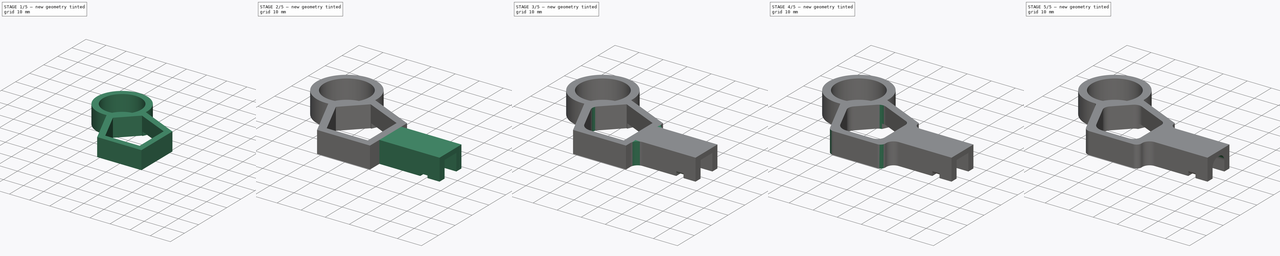
[diagram: build sequence overview — one tinted view per stage of 5, left to right]
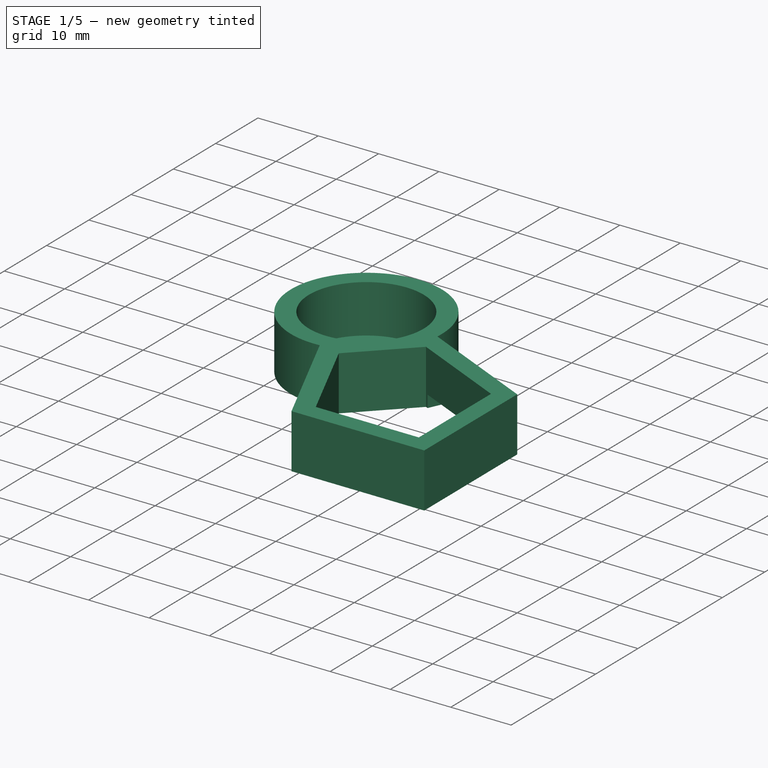
[diagram: stage 1 of 5 — iso view after this stage's code; geometry added in this stage tinted green]
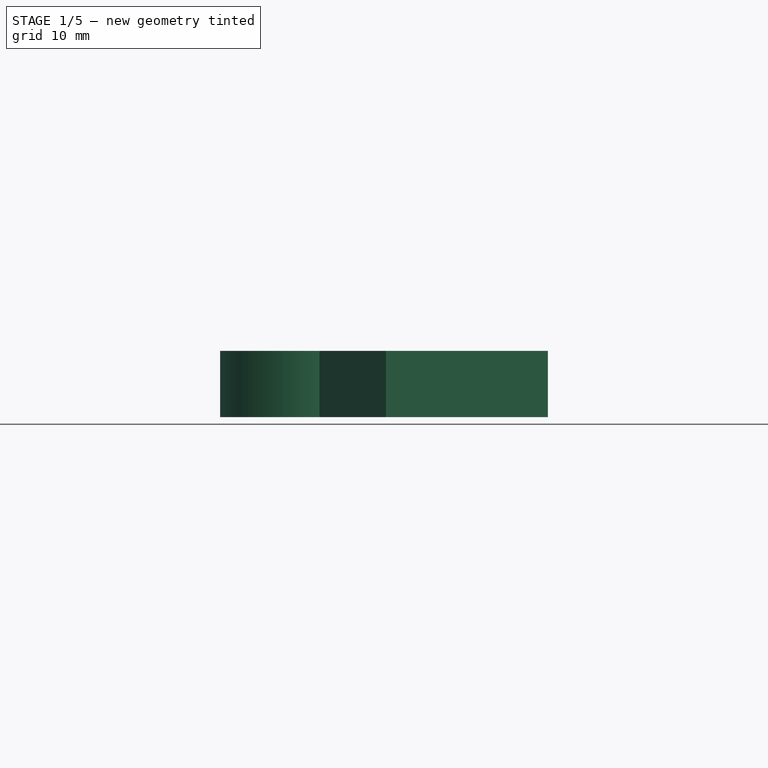
[diagram: stage 1 of 5 — front view after this stage's code; geometry added in this stage tinted green]
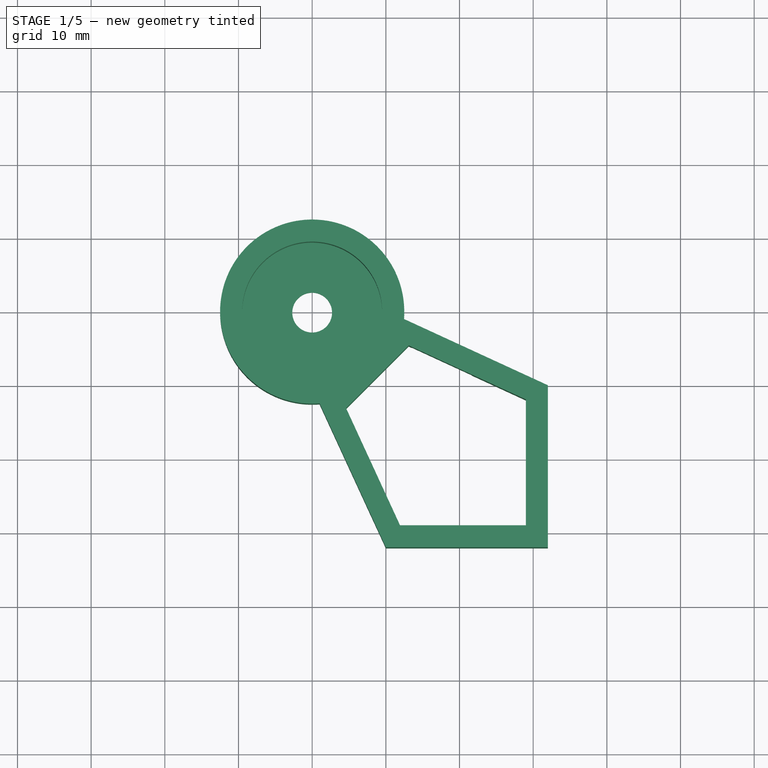
[diagram: stage 1 of 5 — top view after this stage's code; geometry added in this stage tinted green]
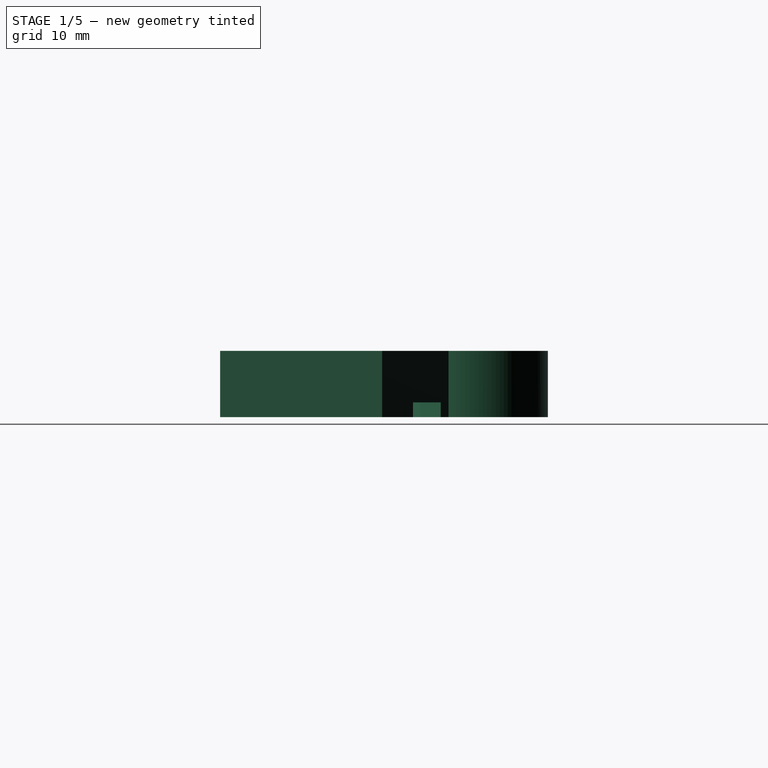
[diagram: stage 1 of 5 — right view after this stage's code; geometry added in this stage tinted green]
FCSTD DOCUMENT  (FreeCAD 0.18R4 (GitTag))
Label: patte-cable
License: All rights reserved
LicenseURL: http://en.wikipedia.org/wiki/All_rights_reserved
objects: PartDesign::Fillet×19, Sketcher::SketchObject×11, PartDesign::Pocket×7, PartDesign::Pad×3, PartDesign::Chamfer×1, PartDesign::Body×1
note: 52 computed .brp shape members not serialized (recipe doc carries the construction recipe); baked Part::Feature solids carry a one-line shape summary decoded from their .brp

FEATURE [Sketcher::SketchObject] Sketch
  MapMode = 5
  Support = -> [XY_Plane]
  sketch-geometry (1):
    g0: Circle CenterX=0 CenterY=0 CenterZ=0 NormalX=0 NormalY=0 NormalZ=1 AngleXU=0 Radius=12.5
  constraints (2):
    c: Coincident(g0,g-1)
    c: Radius(g0) = 12.5
FEATURE [PartDesign::Pad] Pad  label="rond"
  Length = 9
  Length2 = 100
  Profile = -> Sketch
  Type = 0
FEATURE [Sketcher::SketchObject] Sketch001
  MapMode = 5
  Placement = pos=(0,0,9) rot=(0,0,1;0rad)
  Support = -> [Pad]
  sketch-geometry (1):
    g0: Circle CenterX=0 CenterY=0 CenterZ=0 NormalX=0 NormalY=0 NormalZ=1 AngleXU=0 Radius=9.5
  constraints (2):
    c: Coincident(g-1,g0)
    c: Radius(g0) = 9.5
FEATURE [PartDesign::Pocket] Pocket  label="evidement rond"
  BaseFeature = -> Pad
  Length = 8
  Length2 = 100
  Profile = -> Sketch001
  Type = 0
FEATURE [Sketcher::SketchObject] Sketch002
  MapMode = 5
  Placement = pos=(0,0,1) rot=(0,0,1;0rad)
  Support = -> [Pocket]
  sketch-geometry (1):
    g0: Circle CenterX=0 CenterY=0 CenterZ=0 NormalX=0 NormalY=0 NormalZ=1 AngleXU=0 Radius=2.7
  constraints (2):
    c: Coincident(g0,g-1)
    c: Radius(g0) = 2.7
FEATURE [PartDesign::Pocket] Pocket001  label="trou central"
  BaseFeature = -> Pocket
  Length = 1
  Length2 = 100
  Profile = -> Sketch002
  Type = 0
FEATURE [Sketcher::SketchObject] Sketch003
  ExternalGeometry = -> [Pocket001]
  MapMode = 5
  Placement = pos=(0,0,0) rot=(1,0,0;3.14159rad)
  Support = -> [Pocket001]
  sketch-geometry (5):
    g0: LineSegment StartX=1 StartY=12.4599 StartZ=0 EndX=10 EndY=32 EndZ=0
    g1: LineSegment StartX=10 StartY=32 StartZ=0 EndX=32 EndY=32 EndZ=0
    g2: LineSegment StartX=32 StartY=32 StartZ=0 EndX=32 EndY=10 EndZ=0
    g3: LineSegment StartX=32 StartY=10 StartZ=0 EndX=12.4599 EndY=1 EndZ=0
    g4: LineSegment StartX=12.4599 StartY=1 StartZ=0 EndX=1 EndY=12.4599 EndZ=0
  constraints (15):
    c: Coincident(g0,g1)
    c: Coincident(g1,g2)
    c: Coincident(g2,g3)
    c: Coincident(g3,g4)
    c: Coincident(g4,g0)
    c: Horizontal(g1)
    c: Vertical(g2)
    c: PointOnObject(g0,g-3)
    c: PointOnObject(g3,g-3)
    c: DistanceY(g2,g2) = 22
    c: DistanceX(g1,g1) = 22
    c: DistanceX(g-1,g2) = 32
    c: DistanceY(g-1,g0) = 32
    c: DistanceY(g-1,g3) = 1
    c: DistanceX(g-1,g0) = 1
FEATURE [PartDesign::Pad] Pad001  label="pentagone"
  BaseFeature = -> Pocket001
  Length = 9
  Length2 = 100
  Profile = -> Sketch003
  Reversed = true
  Type = 0
FEATURE [Sketcher::SketchObject] Sketch004
  ExternalGeometry = -> [Pad001]
  MapMode = 5
  Placement = pos=(1.80071,3.90956,0) rot=(0.153188,0.698761,0.698761;2.83758rad)
  Support = -> [Pad001]
  sketch-geometry (4):
    g0: LineSegment StartX=-23.2487 StartY=-3.08644 StartZ=0 EndX=-14.2487 EndY=-3.08644 EndZ=0
    g1: LineSegment StartX=-14.2487 StartY=-3.08644 StartZ=0 EndX=-14.2487 EndY=2 EndZ=0
    g2: LineSegment StartX=-14.2487 StartY=2 StartZ=0 EndX=-23.2487 EndY=2 EndZ=0
    g3: LineSegment StartX=-23.2487 StartY=2 StartZ=0 EndX=-23.2487 EndY=-3.08644 EndZ=0
  constraints (11):
    c: Coincident(g0,g1)
    c: Coincident(g1,g2)
    c: Coincident(g2,g3)
    c: Coincident(g3,g0)
    c: Horizontal(g0)
    c: Horizontal(g2)
    c: Vertical(g1)
    c: Vertical(g3)
    c: DistanceX(g-3,g2) = 10
    c: DistanceX(g-3,g1) = 19
    c: DistanceY(g-3,g2) = 2
FEATURE [PartDesign::Pocket] Pocket002  label="passe cable termo"
  BaseFeature = -> Pad001
  Length = 5
  Length2 = 100
  Profile = -> Sketch004
  Type = 0
FEATURE [Sketcher::SketchObject] Sketch005
  ExternalGeometry = -> [Pocket002]
  MapMode = 5
  Placement = pos=(0,0,0) rot=(1,0,0;3.14159rad)
  Support = -> [Pocket002]
  sketch-geometry (5):
    g0: LineSegment StartX=4.59926 StartY=13.1033 StartZ=0 EndX=11.9211 EndY=29 EndZ=0
    g1: LineSegment StartX=11.9211 StartY=29 StartZ=0 EndX=29 EndY=29 EndZ=0
    g2: LineSegment StartX=29 StartY=29 StartZ=0 EndX=29 EndY=11.9211 EndZ=0
    g3: LineSegment StartX=29 StartY=11.9211 StartZ=0 EndX=13.1033 EndY=4.59926 EndZ=0
    g4: LineSegment StartX=13.1033 StartY=4.59926 StartZ=0 EndX=4.59926 EndY=13.1033 EndZ=0
  constraints (15):
    c: Coincident(g0,g1)
    c: Coincident(g1,g2)
    c: Coincident(g2,g3)
    c: Coincident(g3,g4)
    c: Coincident(g4,g0)
    c: Parallel(g1,g-4)
    c: Parallel(g-5,g2)
    c: Parallel(g-7,g3)
    c: Parallel(g4,g-6)
    c: Parallel(g0,g-3)
    c: DistanceX(g1,g-5) = 3
    c: DistanceY(g1,g-5) = 3
    c: Distance(g2,g-7) = 3
    c: Distance(g3,g-6) = 3
    c: Distance(g0,g-3) = 3
FEATURE [PartDesign::Pocket] Pocket003  label="extru pentagone"
  BaseFeature = -> Pocket002
  Length = 9
  Length2 = 100
  Profile = -> Sketch005
  Type = 0
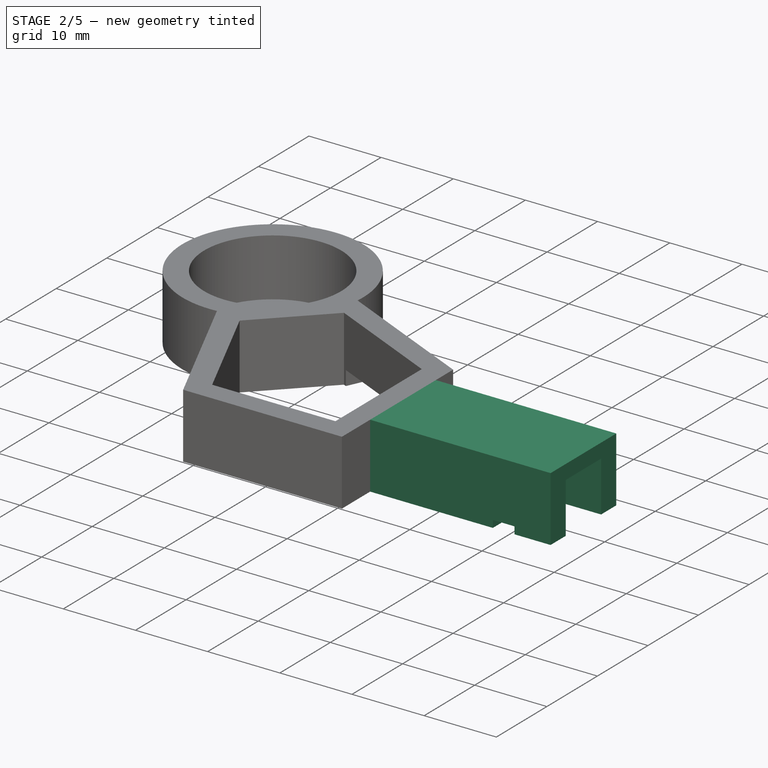
[diagram: stage 2 of 5 — iso view after this stage's code; geometry added in this stage tinted green]
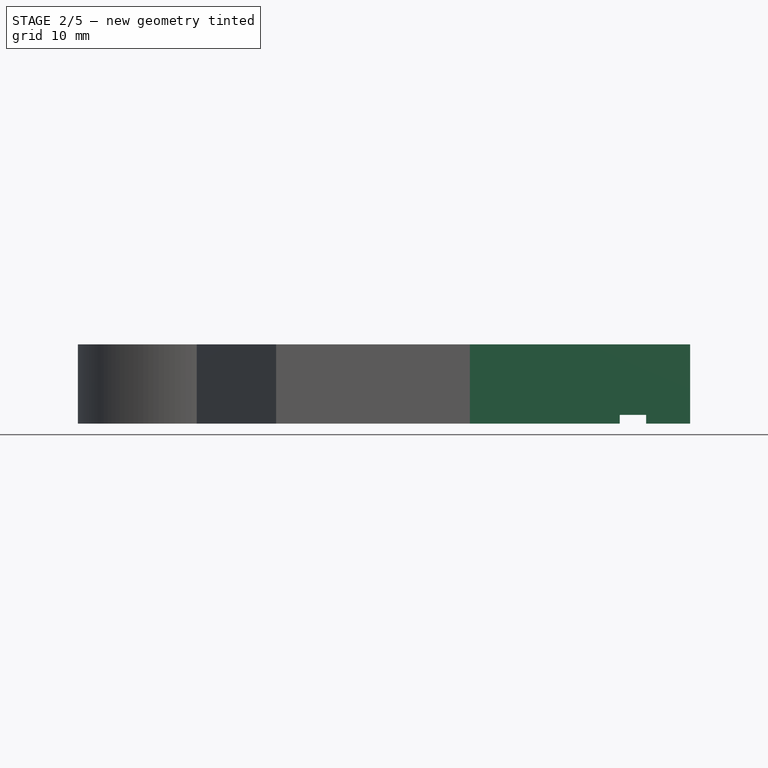
[diagram: stage 2 of 5 — front view after this stage's code; geometry added in this stage tinted green]
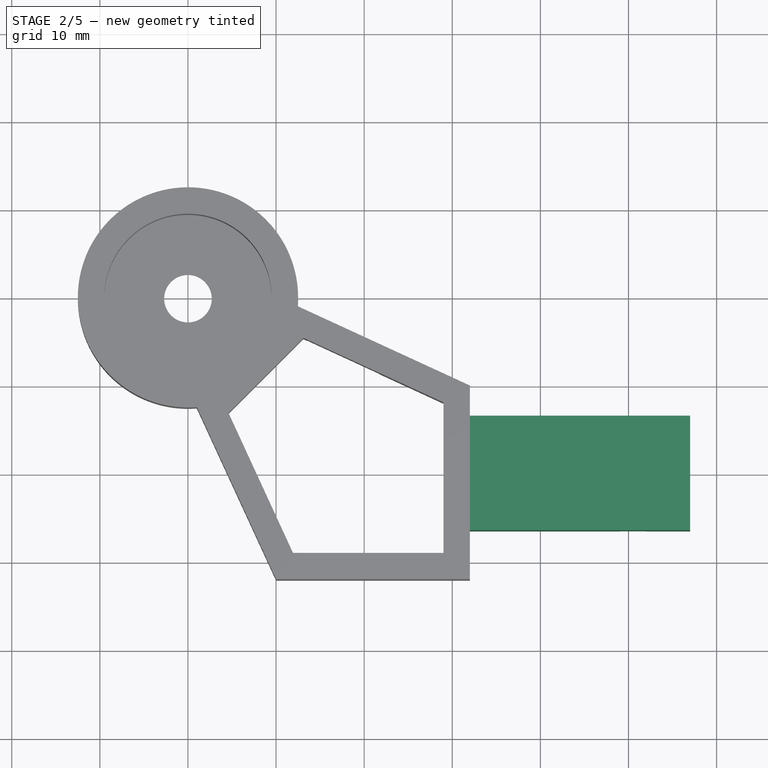
[diagram: stage 2 of 5 — top view after this stage's code; geometry added in this stage tinted green]
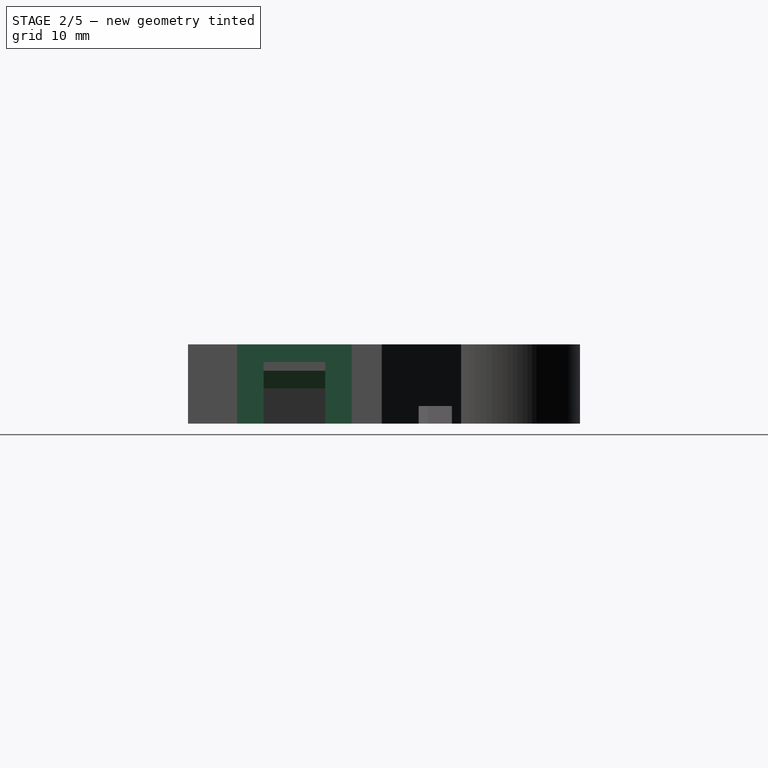
[diagram: stage 2 of 5 — right view after this stage's code; geometry added in this stage tinted green]
FEATURE [Sketcher::SketchObject] Sketch006  label="passse cable main"
  ExternalGeometry = -> [Pocket003]
  MapMode = 5
  Placement = pos=(32,0,0) rot=(0.57735,0.57735,0.57735;2.0944rad)
  Support = -> [Pocket003]
  sketch-geometry (4):
    g0: LineSegment StartX=-26 StartY=-3.75311 StartZ=0 EndX=-14 EndY=-3.75311 EndZ=0
    g1: LineSegment StartX=-14 StartY=-3.75311 StartZ=0 EndX=-14 EndY=4 EndZ=0
    g2: LineSegment StartX=-14 StartY=4 StartZ=0 EndX=-26 EndY=4 EndZ=0
    g3: LineSegment StartX=-26 StartY=4 StartZ=0 EndX=-26 EndY=-3.75311 EndZ=0
  constraints (11):
    c: Coincident(g0,g1)
    c: Coincident(g1,g2)
    c: Coincident(g2,g3)
    c: Coincident(g3,g0)
    c: Horizontal(g0)
    c: Horizontal(g2)
    c: Vertical(g1)
    c: Vertical(g3)
    c: DistanceX(g-3,g2) = 6
    c: DistanceX(g-3,g1) = 18
    c: DistanceY(g-3,g2) = 4
FEATURE [PartDesign::Pocket] Pocket004
  BaseFeature = -> Pocket003
  Length = 5
  Length2 = 100
  Profile = -> Sketch006
  Type = 0
FEATURE [Sketcher::SketchObject] Sketch007
  MapMode = 5
  Placement = pos=(32,0,0) rot=(0.57735,0.57735,0.57735;2.0944rad)
  Support = -> [Pocket004]
  sketch-geometry (8):
    g0: LineSegment StartX=-23.4195 StartY=9e-16 StartZ=0 EndX=-26.4195 EndY=9e-16 EndZ=0
    g1: LineSegment StartX=-26.4195 StartY=9e-16 StartZ=0 EndX=-26.4195 EndY=9 EndZ=0
    g2: LineSegment StartX=-26.4195 StartY=9 StartZ=0 EndX=-13.4195 EndY=9 EndZ=0
    g3: LineSegment StartX=-13.4195 StartY=9 StartZ=0 EndX=-13.4195 EndY=0 EndZ=0
    g4: LineSegment StartX=-13.4195 StartY=0 StartZ=0 EndX=-16.4195 EndY=0 EndZ=0
    g5: LineSegment StartX=-16.4195 StartY=0 StartZ=0 EndX=-16.4195 EndY=7 EndZ=0
    g6: LineSegment StartX=-16.4195 StartY=7 StartZ=0 EndX=-23.4195 EndY=7 EndZ=0
    g7: LineSegment StartX=-23.4195 StartY=7 StartZ=0 EndX=-23.4195 EndY=9e-16 EndZ=0
  constraints (23):
    c: Horizontal(g0)
    c: Coincident(g0,g1)
    c: Vertical(g1)
    c: Coincident(g1,g2)
    c: Horizontal(g2)
    c: Coincident(g2,g3)
    c: Vertical(g3)
    c: Coincident(g3,g4)
    c: Horizontal(g4)
    c: Coincident(g4,g5)
    c: Vertical(g5)
    c: Coincident(g5,g6)
    c: Horizontal(g6)
    c: Coincident(g6,g7)
    c: Coincident(g7,g0)
    c: Vertical(g7)
    c: DistanceX(g4,g4) = 3
    c: DistanceX(g0,g0) = 3
    c: DistanceX(g6,g6) = 7
    c: DistanceY(g3,g3) = 9
    c: Equal(g1,g3)
    c: DistanceY(g4,g5) = 7
    c: PointOnObject(g3,g-1)
FEATURE [PartDesign::Pad] Pad002  label="tunnel cable"
  BaseFeature = -> Pocket004
  Length = 25
  Length2 = 100
  Profile = -> Sketch007
  Type = 0
FEATURE [PartDesign::Chamfer] Chamfer
  Base = -> Pad002 [Edge80]
  BaseFeature = -> Pad002
  Size = 2
FEATURE [PartDesign::Fillet] Fillet
  Base = -> Chamfer [Edge16]
  BaseFeature = -> Chamfer
  Radius = 2.4
FEATURE [PartDesign::Fillet] Fillet001
  Base = -> Fillet [Edge35]
  BaseFeature = -> Fillet
  Radius = 2.4
FEATURE [Sketcher::SketchObject] Sketch008
  MapMode = 5
  Placement = pos=(0,0,9e-16) rot=(1,0,0;3.14159rad)
  Support = -> [Fillet001]
FEATURE [Sketcher::SketchObject] Sketch009
  ExternalGeometry = -> [Fillet001]
  MapMode = 5
  Placement = pos=(0,-13.4195,0) rot=(0,0.707107,0.707107;3.14159rad)
  Support = -> [Fillet001]
  sketch-geometry (4):
    g0: LineSegment StartX=-52 StartY=0 StartZ=0 EndX=-49 EndY=0 EndZ=0
    g1: LineSegment StartX=-49 StartY=0 StartZ=0 EndX=-49 EndY=1 EndZ=0
    g2: LineSegment StartX=-49 StartY=1 StartZ=0 EndX=-52 EndY=1 EndZ=0
    g3: LineSegment StartX=-52 StartY=1 StartZ=0 EndX=-52 EndY=0 EndZ=0
  constraints (12):
    c: Coincident(g0,g1)
    c: Coincident(g1,g2)
    c: Coincident(g2,g3)
    c: Coincident(g3,g0)
    c: Horizontal(g0)
    c: Horizontal(g2)
    c: Vertical(g1)
    c: Vertical(g3)
    c: DistanceY(g1,g1) = 1
    c: DistanceX(g2,g2) = 3
    c: PointOnObject(g0,g-3)
    c: DistanceX(g-3,g0) = 5
FEATURE [PartDesign::Pocket] Pocket005
  BaseFeature = -> Fillet001
  Length = 13
  Length2 = 100
  Profile = -> Sketch009
  Type = 0
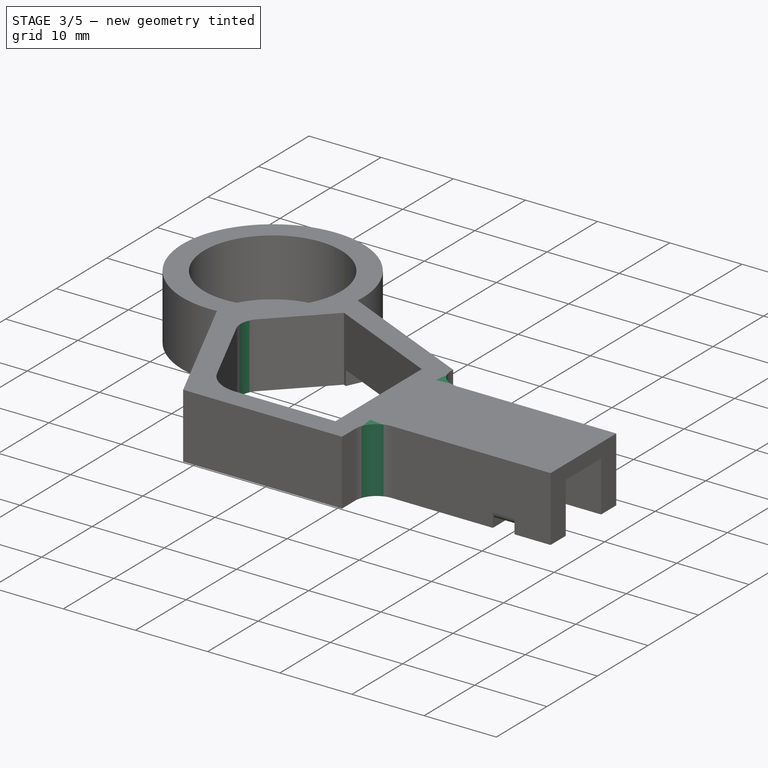
[diagram: stage 3 of 5 — iso view after this stage's code; geometry added in this stage tinted green]
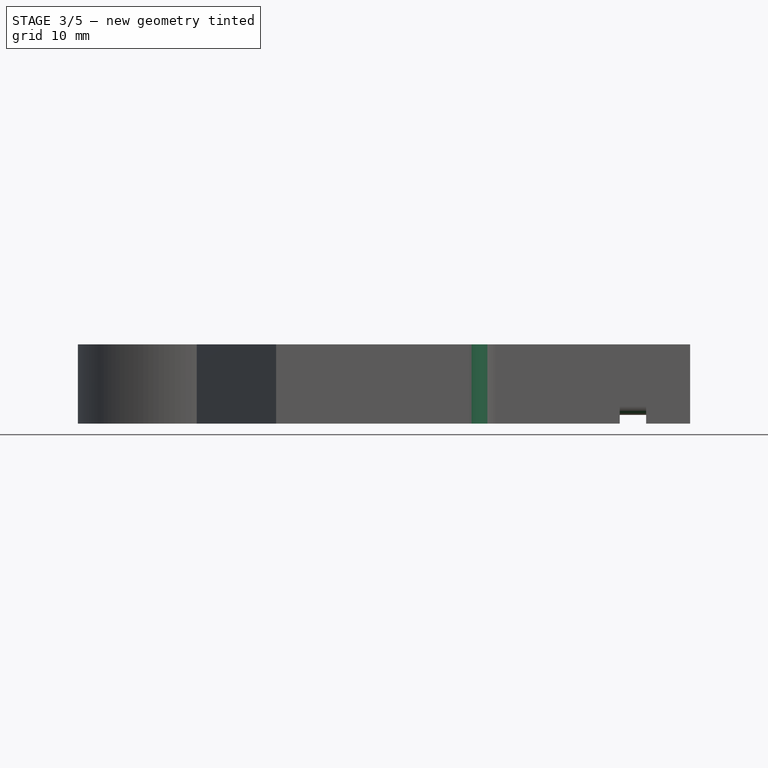
[diagram: stage 3 of 5 — front view after this stage's code; geometry added in this stage tinted green]
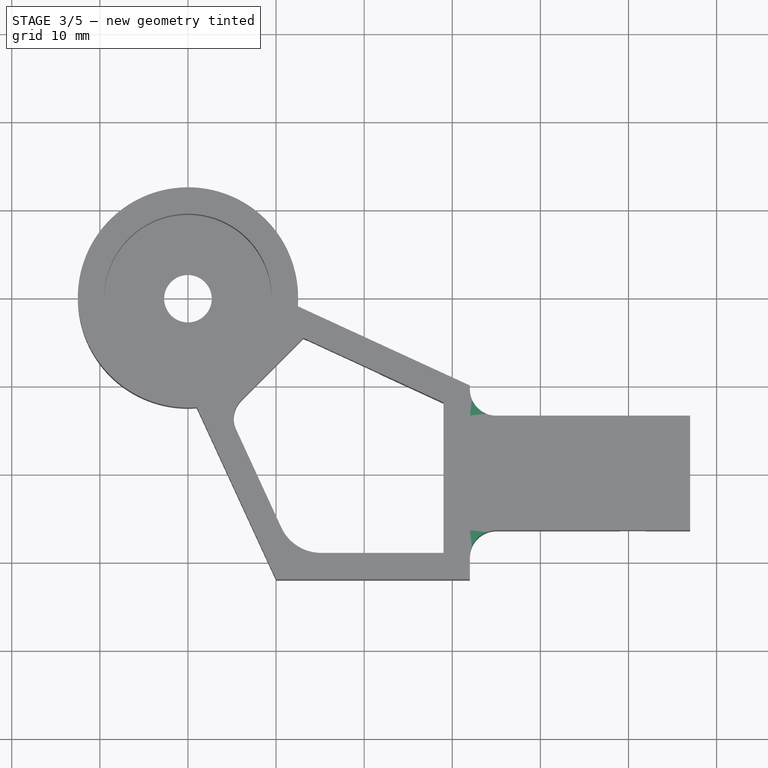
[diagram: stage 3 of 5 — top view after this stage's code; geometry added in this stage tinted green]
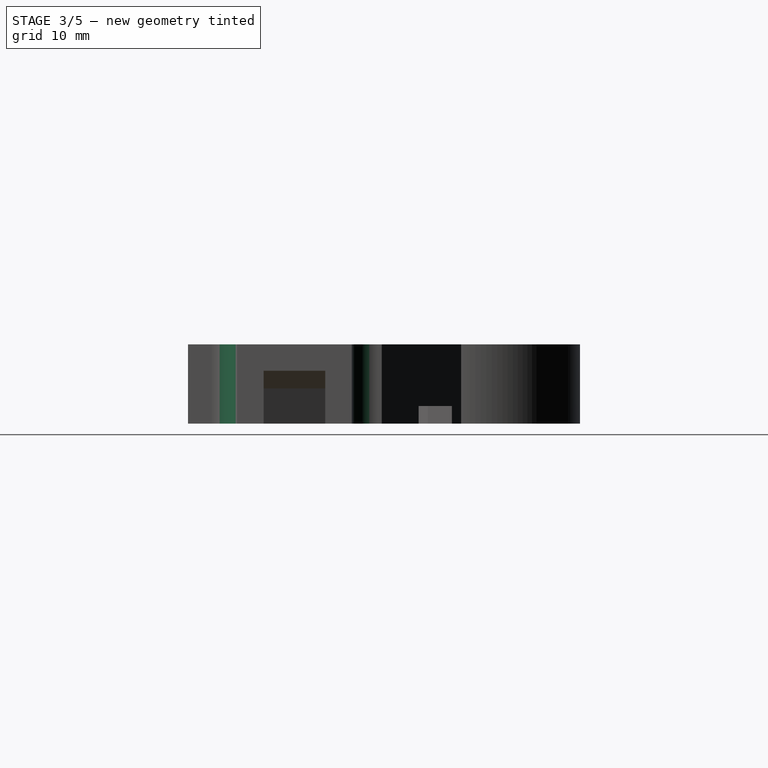
[diagram: stage 3 of 5 — right view after this stage's code; geometry added in this stage tinted green]
FEATURE [PartDesign::Fillet] Fillet002
  Base = -> Pocket005 [Edge88]
  BaseFeature = -> Pocket005
  Radius = 1
FEATURE [PartDesign::Fillet] Fillet003
  Base = -> Fillet002 [Edge91]
  BaseFeature = -> Fillet002
  Radius = 1
FEATURE [PartDesign::Fillet] Fillet004
  Base = -> Fillet003 [Edge6]
  BaseFeature = -> Fillet003
  Radius = 3
FEATURE [PartDesign::Fillet] Fillet005
  Base = -> Fillet004 [Edge71]
  BaseFeature = -> Fillet004
  Radius = 3
FEATURE [PartDesign::Fillet] Fillet006
  Base = -> Fillet005 [Edge96]
  BaseFeature = -> Fillet005
  Radius = 5
FEATURE [PartDesign::Fillet] Fillet007
  Base = -> Fillet006 [Edge18]
  BaseFeature = -> Fillet006
  Radius = 3
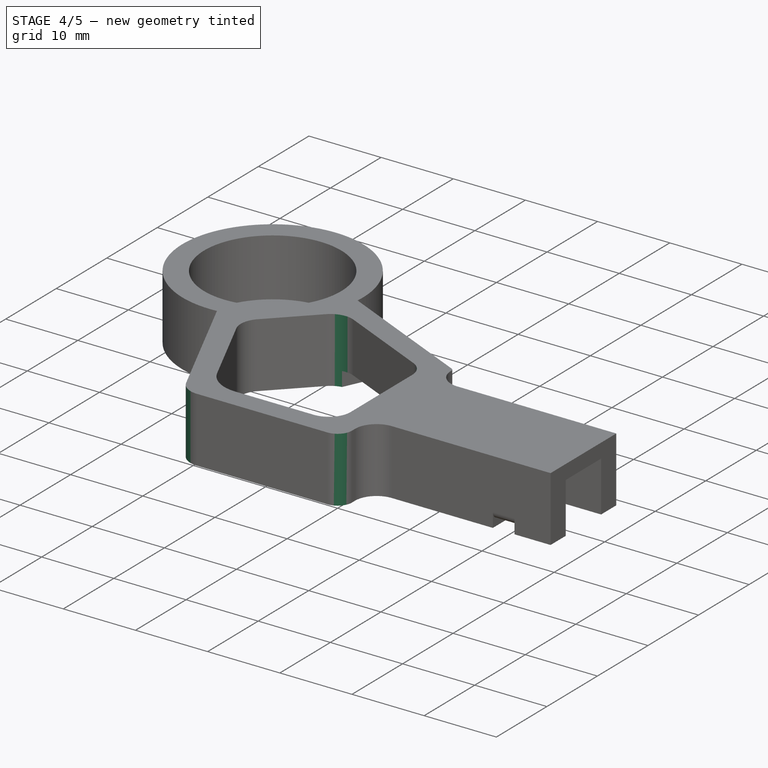
[diagram: stage 4 of 5 — iso view after this stage's code; geometry added in this stage tinted green]
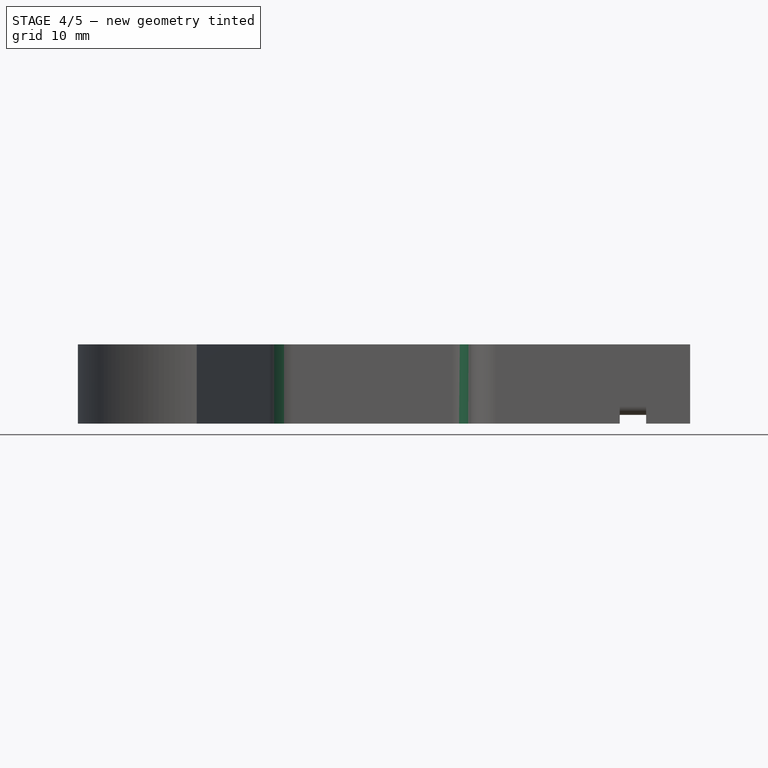
[diagram: stage 4 of 5 — front view after this stage's code; geometry added in this stage tinted green]
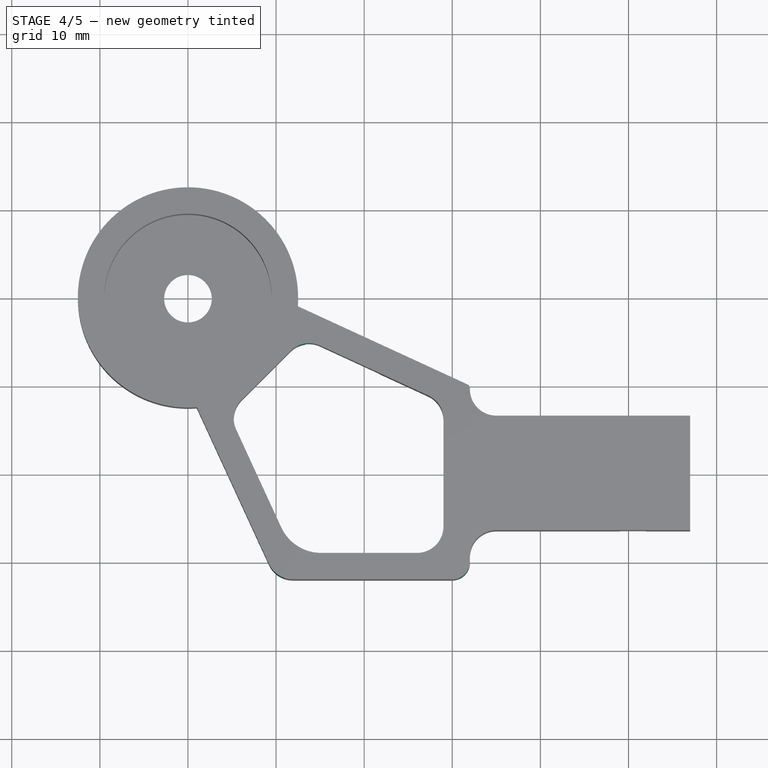
[diagram: stage 4 of 5 — top view after this stage's code; geometry added in this stage tinted green]
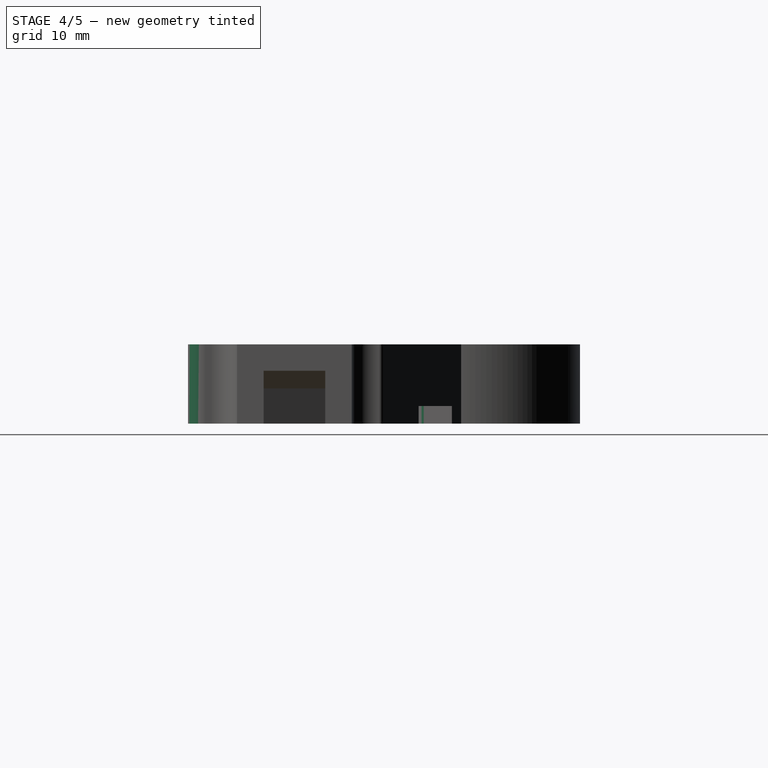
[diagram: stage 4 of 5 — right view after this stage's code; geometry added in this stage tinted green]
FEATURE [PartDesign::Fillet] Fillet008
  Base = -> Fillet007 [Edge25]
  BaseFeature = -> Fillet007
  Radius = 3
FEATURE [PartDesign::Fillet] Fillet009
  Base = -> Fillet008 [Edge30]
  BaseFeature = -> Fillet008
  Radius = 3
FEATURE [PartDesign::Fillet] Fillet010
  Base = -> Fillet009 [Edge33]
  BaseFeature = -> Fillet009
  Radius = 3
FEATURE [PartDesign::Fillet] Fillet011
  Base = -> Fillet010 [Edge55]
  BaseFeature = -> Fillet010
  Radius = 3
FEATURE [PartDesign::Fillet] Fillet012
  Base = -> Fillet011 [Edge23]
  BaseFeature = -> Fillet011
  Radius = 2
FEATURE [PartDesign::Fillet] Fillet013
  Base = -> Fillet012 [Edge45]
  BaseFeature = -> Fillet012
  Radius = 0.5
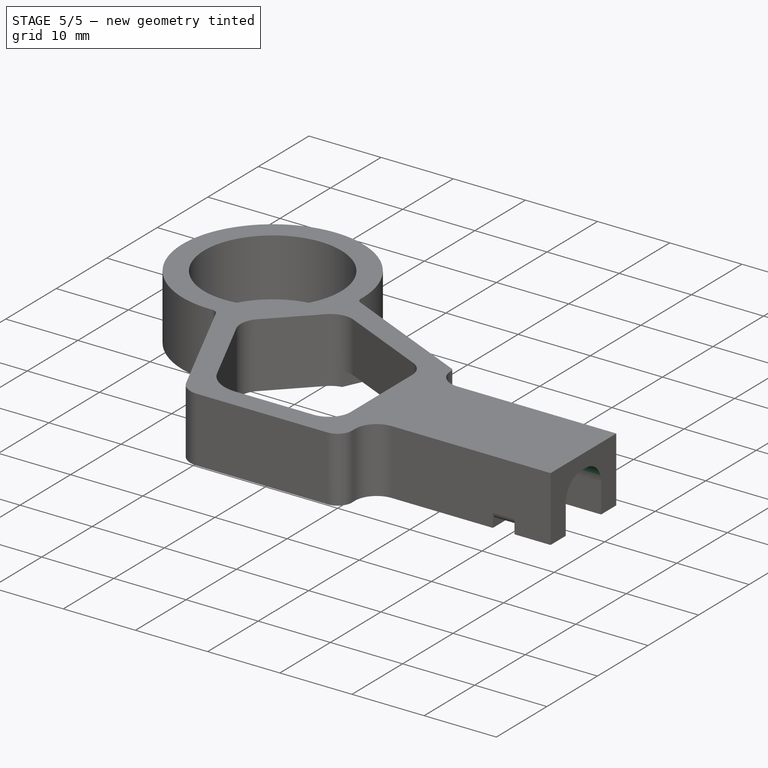
[diagram: stage 5 of 5 — iso view after this stage's code; geometry added in this stage tinted green]
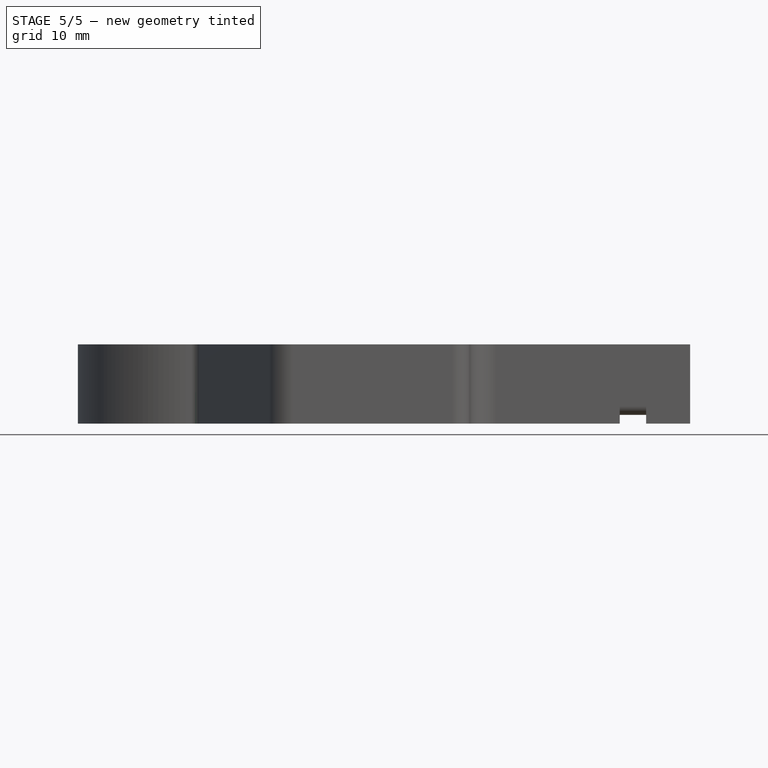
[diagram: stage 5 of 5 — front view after this stage's code; geometry added in this stage tinted green]
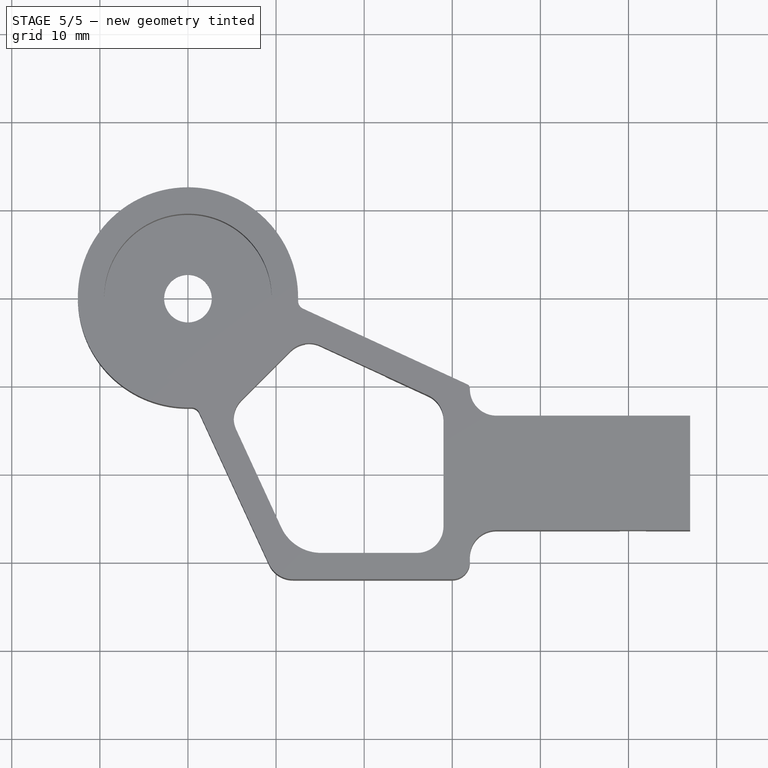
[diagram: stage 5 of 5 — top view after this stage's code; geometry added in this stage tinted green]
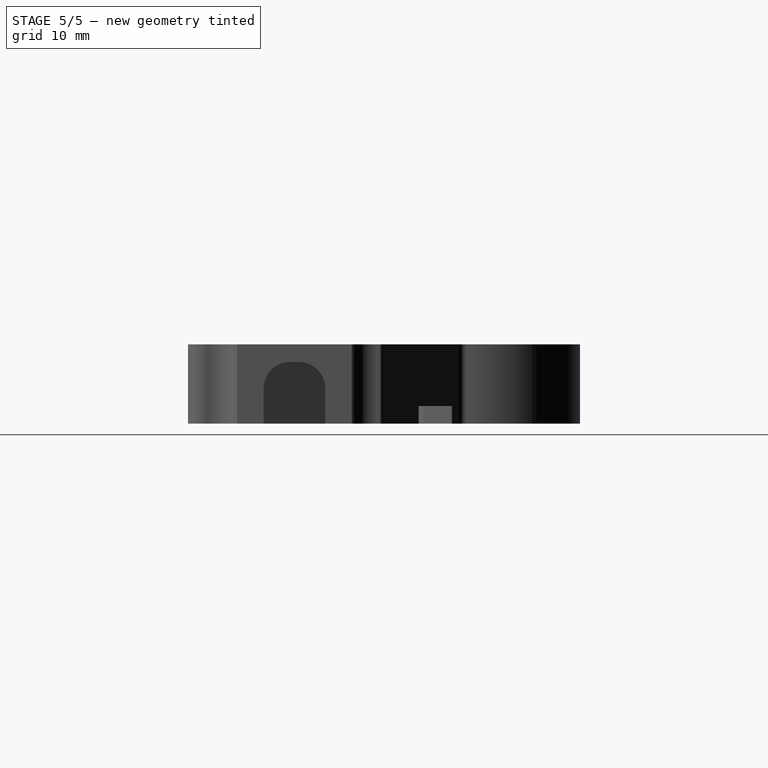
[diagram: stage 5 of 5 — right view after this stage's code; geometry added in this stage tinted green]
FEATURE [PartDesign::Fillet] Fillet014
  Base = -> Fillet013 [Edge37]
  BaseFeature = -> Fillet013
  Radius = 1
FEATURE [PartDesign::Fillet] Fillet015
  Base = -> Fillet014 [Edge40]
  BaseFeature = -> Fillet014
  Radius = 1
FEATURE [PartDesign::Fillet] Fillet016
  Base = -> Fillet015 [Edge176]
  BaseFeature = -> Fillet015
  Radius = 3
FEATURE [PartDesign::Fillet] Fillet017
  Base = -> Fillet016 [Edge12]
  BaseFeature = -> Fillet016
  Radius = 3
FEATURE [Sketcher::SketchObject] Sketch010
  ExternalGeometry = -> [Fillet017]
  MapMode = 5
  Placement = pos=(29,0,0) rot=(0.57735,-0.57735,-0.57735;2.0944rad)
  Support = -> [Fillet017]
  sketch-geometry (6):
    g0: LineSegment StartX=16.4195 StartY=4 StartZ=0 EndX=23.4195 EndY=4 EndZ=0
    g1: ArcOfCircle CenterX=19.411 CenterY=4.01903 CenterZ=0 NormalX=0 NormalY=0 NormalZ=1 AngleXU=0 Radius=2.98098 StartAngle=1.56794 EndAngle=2.41472
    g2: ArcOfCircle CenterX=20.443 CenterY=4.05248 CenterZ=0 NormalX=0 NormalY=0 NormalZ=1 AngleXU=0 Radius=2.94761 StartAngle=0.721765 EndAngle=1.57876
    g3: LineSegment StartX=19.4195 StartY=7 StartZ=0 EndX=20.4195 EndY=7 EndZ=0
    g4: ArcOfCircle CenterX=19.3355 CenterY=4.0321 CenterZ=0 NormalX=0 NormalY=0 NormalZ=1 AngleXU=0 Radius=2.91613 StartAngle=2.40086 EndAngle=3.1526
    g5: ArcOfCircle CenterX=20.5209 CenterY=4.03872 CenterZ=0 NormalX=0 NormalY=0 NormalZ=1 AngleXU=0 Radius=2.89889 StartAngle=6.26983 EndAngle=7.02627
  constraints (12):
    c: Coincident(g3,g2)
    c: Coincident(g3,g1)
    c: Coincident(g1,g-4)
    c: Coincident(g2,g-5)
    c: Coincident(g-6,g0)
    c: Coincident(g0,g-7)
    c: Coincident(g4,g1)
    c: Coincident(g1,g-6)
    c: Coincident(g4,g0)
    c: Coincident(g5,g2)
    c: Coincident(g2,g-7)
    c: Coincident(g5,g0)
FEATURE [PartDesign::Pocket] Pocket006
  BaseFeature = -> Fillet017
  Length = 4
  Length2 = 100
  Profile = -> Sketch010
  Type = 0
FEATURE [PartDesign::Fillet] Fillet018
  Base = -> Pocket006 [Edge192]
  BaseFeature = -> Pocket006
  Radius = 1
FEATURE [PartDesign::Body] Body
  Group = -> [Sketch,Pad,Sketch001,Pocket,Sketch002,Pocket001,Sketch003,Pad001,Sketch004,Pocket002,Sketch005,Pocket003,Sketch006,Pocket004,Sketch007,Pad002,Chamfer,Fillet,Fillet001,Sketch008,Sketch009,Pocket005,Fillet002,Fillet003,Fillet004,Fillet005,Fillet006,Fillet007,Fillet008,Fillet009,Fillet010,Fillet011,Fillet012,Fillet013,Fillet014,Fillet015,Fillet016,Fillet017,Sketch010,Pocket006,Fillet018]
  Origin = -> Origin
  Tip = -> Fillet018
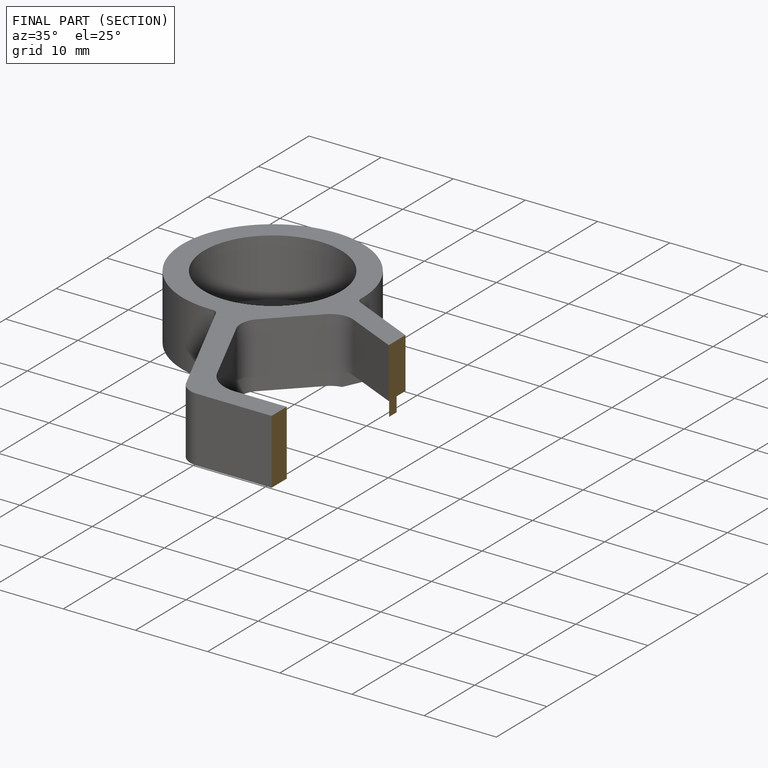
[diagram: finished part — half-section view (interior)]
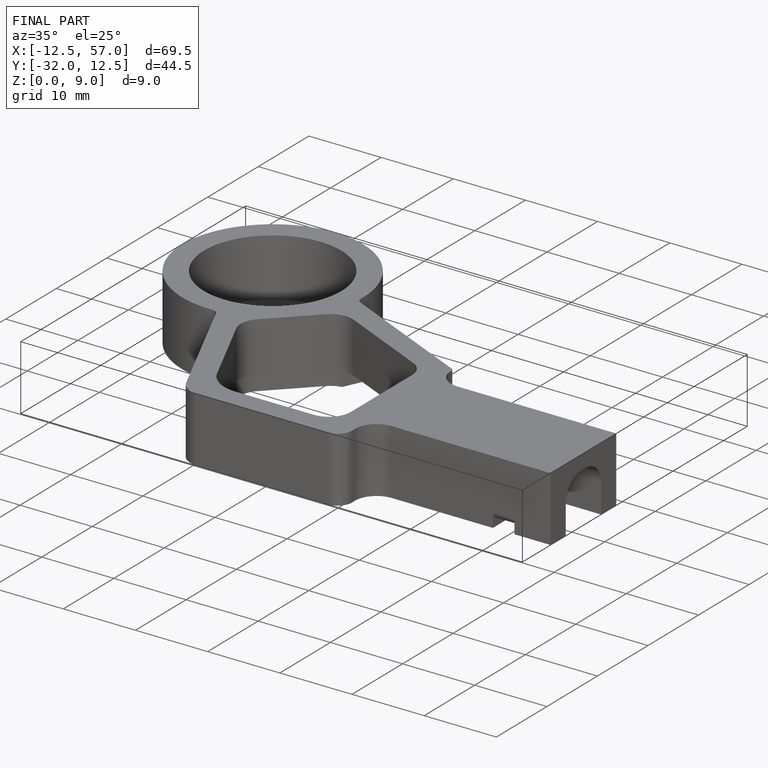
[diagram: finished part — iso view with bounding-box wireframe]
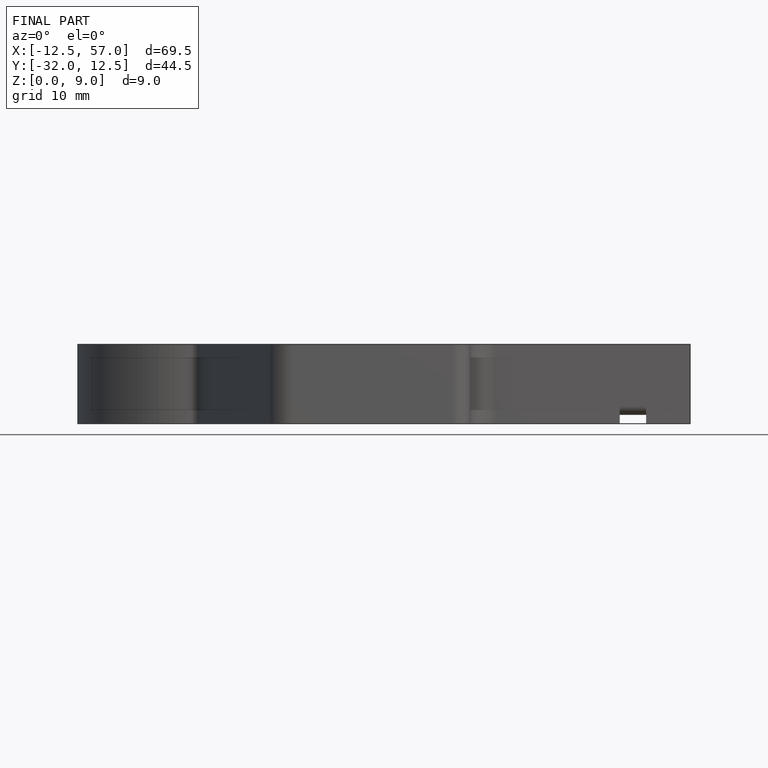
[diagram: finished part — front view with bounding-box wireframe]
